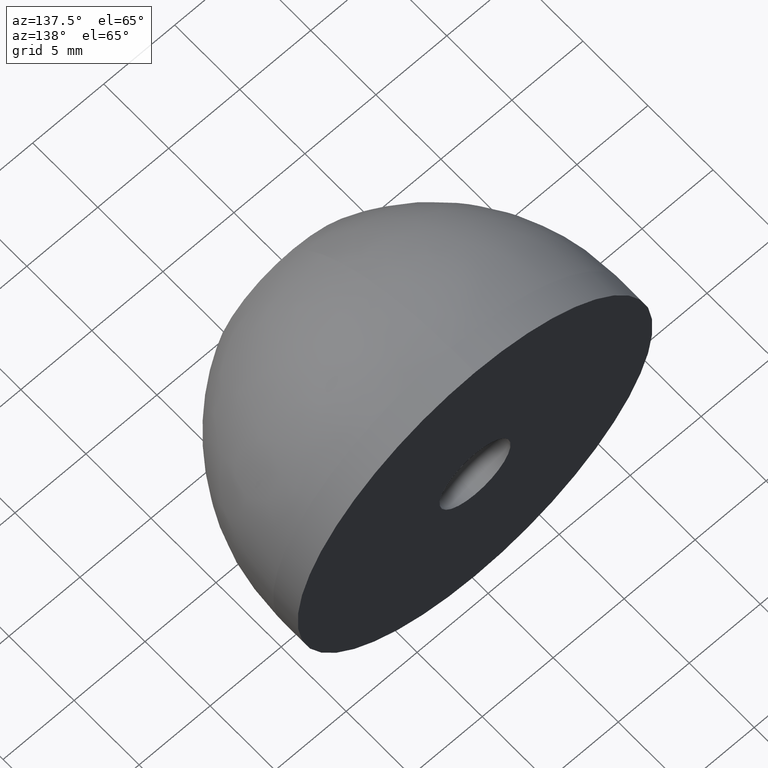
[diagram: clean part render]
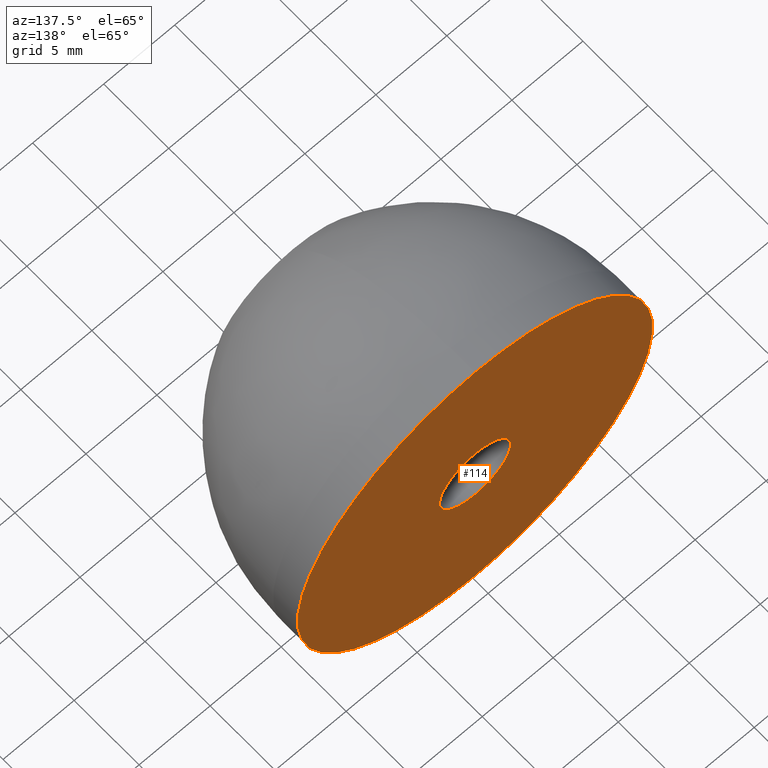
[diagram: same view with one face highlighted and labeled with its STEP entity id]
A machine part, auxiliary view. The second image highlights one B-rep face of the part: STEP entity #114.
In plain terms, the highlighted planar face has unit normal (0, -1, 0).
Its self-contained STEP definition (entity closure, byte-faithful):
#114=ADVANCED_FACE('',(#154,#155),#153,.F.);
#153=PLANE('',#341);
#154=FACE_OUTER_BOUND('',#342,.T.);
#155=FACE_BOUND('',#343,.T.);
#338=CARTESIAN_POINT('',(-2.59807621135E+001,1.40000000000E+001,2.87500000000E+001));
#339=DIRECTION('',(0.00000000000E+000,-1.00000000000E+000,0.00000000000E+000));
#340=DIRECTION('',(0.00000000000E+000,0.00000000000E+000,-1.00000000000E+000));
#341=AXIS2_PLACEMENT_3D('',#338,#339,#340);
#342=EDGE_LOOP('',(#456,#457));
#343=EDGE_LOOP('',(#458,#459));
#456=ORIENTED_EDGE('',*,*,#532,.F.);
#457=ORIENTED_EDGE('',*,*,#533,.F.);
#458=ORIENTED_EDGE('',*,*,#534,.T.);
#459=ORIENTED_EDGE('',*,*,#535,.T.);
#532=EDGE_CURVE('',#618,#619,#620,.T.);
#533=EDGE_CURVE('',#619,#618,#626,.T.);
#534=EDGE_CURVE('',#632,#633,#634,.T.);
#535=EDGE_CURVE('',#633,#632,#640,.T.);
#618=VERTEX_POINT('',#854);
#619=VERTEX_POINT('',#855);
#620=CIRCLE('',#859,1.25000000000E+001);
#626=CIRCLE('',#863,1.25000000000E+001);
#632=VERTEX_POINT('',#864);
#633=VERTEX_POINT('',#865);
#634=CIRCLE('',#869,2.50000000000E+000);
#640=CIRCLE('',#873,2.50000000000E+000);
#854=CARTESIAN_POINT('',(-1.18423789293E-015,1.40000000000E+001,1.25000000000E+001));
#855=CARTESIAN_POINT('',(-9.38638995811E-016,1.40000000000E+001,-1.25000000000E+001));
#856=CARTESIAN_POINT('',(0.00000000000E+000,1.40000000000E+001,0.00000000000E+000));
#857=DIRECTION('',(0.00000000000E+000,-1.00000000000E+000,0.00000000000E+000));
#858=DIRECTION('',(4.73695157174E-017,-0.00000000000E+000,-1.00000000000E+000));
#859=AXIS2_PLACEMENT_3D('',#856,#857,#858);
#860=CARTESIAN_POINT('',(0.00000000000E+000,1.40000000000E+001,0.00000000000E+000));
#861=DIRECTION('',(0.00000000000E+000,-1.00000000000E+000,0.00000000000E+000));
#862=DIRECTION('',(4.73695157174E-017,-0.00000000000E+000,-1.00000000000E+000));
#863=AXIS2_PLACEMENT_3D('',#860,#861,#862);
#864=CARTESIAN_POINT('',(3.06151588456E-016,1.40000000000E+001,2.50000000000E+000));
#865=CARTESIAN_POINT('',(1.48029736617E-016,1.40000000000E+001,-2.50000000000E+000));
#866=CARTESIAN_POINT('',(0.00000000000E+000,1.40000000000E+001,0.00000000000E+000));
#867=DIRECTION('',(0.00000000000E+000,-1.00000000000E+000,0.00000000000E+000));
#868=DIRECTION('',(-0.00000000000E+000,-0.00000000000E+000,1.00000000000E+000));
#869=AXIS2_PLACEMENT_3D('',#866,#867,#868);
#870=CARTESIAN_POINT('',(0.00000000000E+000,1.40000000000E+001,0.00000000000E+000));
#871=DIRECTION('',(0.00000000000E+000,-1.00000000000E+000,0.00000000000E+000));
#872=DIRECTION('',(-0.00000000000E+000,-0.00000000000E+000,1.00000000000E+000));
#873=AXIS2_PLACEMENT_3D('',#870,#871,#872);